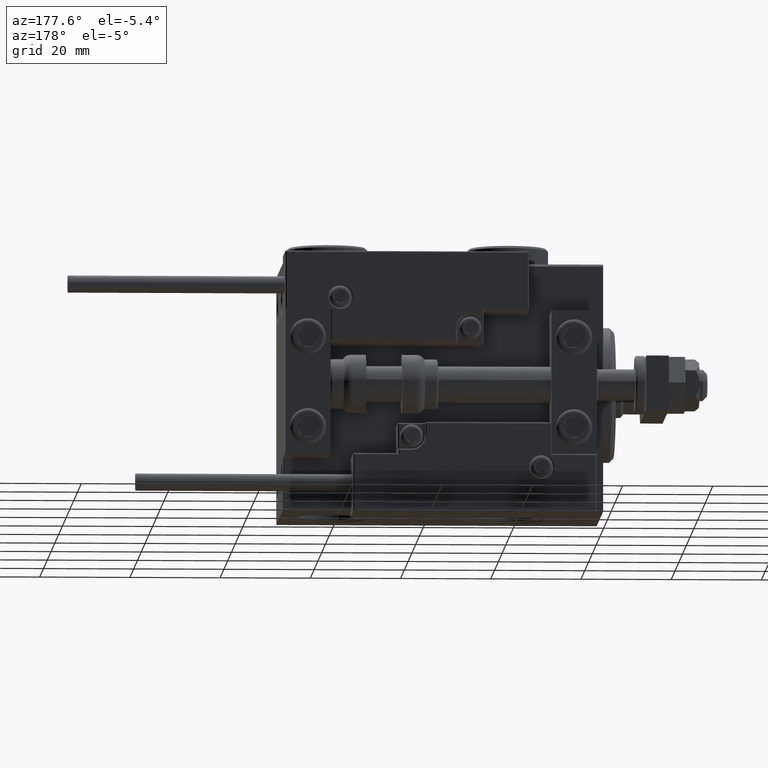
[diagram: clean part render]
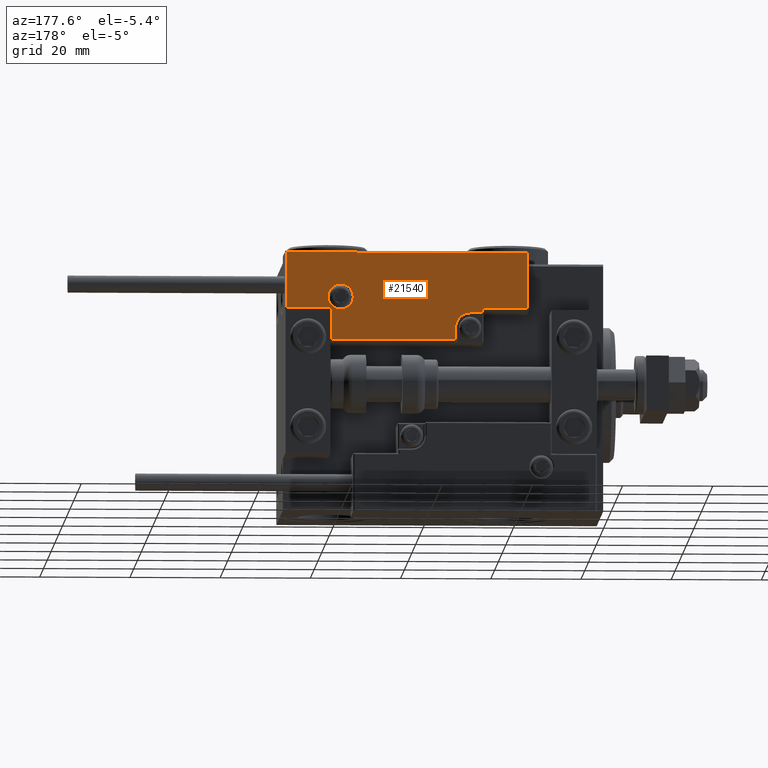
[diagram: same view with one face highlighted and labeled with its STEP entity id]
A machine part, auxiliary view. The second image highlights one B-rep face of the part: STEP entity #21540.
In plain terms, the highlighted planar face has unit normal (-0, 1, -0).
Its self-contained STEP definition (entity closure, byte-faithful):
#158 = EDGE_CURVE ( 'NONE', #42826, #48264, #22163, .T. ) ;
#702 = VERTEX_POINT ( 'NONE', #10676 ) ;
#1149 = VERTEX_POINT ( 'NONE', #47648 ) ;
#2489 = DIRECTION ( 'NONE',  ( 1.000000000000000000, 0.000000000000000000, 0.000000000000000000 ) ) ;
#2724 = ORIENTED_EDGE ( 'NONE', *, *, #34812, .T. ) ;
#2977 = EDGE_LOOP ( 'NONE', ( #14272, #28972 ) ) ;
#3202 = CARTESIAN_POINT ( 'NONE',  ( 26.70000000000006324, 19.70000000000001705, 14.00000000000000000 ) ) ;
#3329 = CARTESIAN_POINT ( 'NONE',  ( 11.00000000000000000, 0.3000000000000032085, 14.00000000000000000 ) ) ;
#5462 = EDGE_CURVE ( 'NONE', #29438, #38679, #45477, .T. ) ;
#5660 = ORIENTED_EDGE ( 'NONE', *, *, #19518, .T. ) ;
#6651 = DIRECTION ( 'NONE',  ( -8.006416042969869188E-16, -1.000000000000000000, 0.000000000000000000 ) ) ;
#7653 = EDGE_CURVE ( 'NONE', #24305, #1149, #39605, .T. ) ;
#8790 = CARTESIAN_POINT ( 'NONE',  ( 26.70000000000006324, 7.300000000000007816, 14.00000000000000000 ) ) ;
#9200 = CARTESIAN_POINT ( 'NONE',  ( 0.000000000000000000, 0.000000000000000000, 14.00000000000000000 ) ) ;
#9366 = CARTESIAN_POINT ( 'NONE',  ( 26.70000000000006324, 20.00000000000001776, 14.00000000000000000 ) ) ;
#9387 = EDGE_CURVE ( 'NONE', #49763, #702, #38757, .T. ) ;
#9468 = FACE_OUTER_BOUND ( 'NONE', #51506, .T. ) ;
#10676 = CARTESIAN_POINT ( 'NONE',  ( -17.59999999999994813, 9.800000000000004263, 14.00000000000000000 ) ) ;
#11190 = EDGE_CURVE ( 'NONE', #1149, #40916, #52427, .T. ) ;
#11339 = EDGE_CURVE ( 'NONE', #702, #49763, #31218, .T. ) ;
#11404 = DIRECTION ( 'NONE',  ( 0.000000000000000000, -0.000000000000000000, -1.000000000000000000 ) ) ;
#11500 = DIRECTION ( 'NONE',  ( 1.000000000000000000, -1.734723475976796001E-16, 0.000000000000000000 ) ) ;
#11874 = VECTOR ( 'NONE', #11500, 1000.000000000000000 ) ;
#12745 = CIRCLE ( 'NONE', #16942, 3.299999999999997158 ) ;
#13556 = VERTEX_POINT ( 'NONE', #20976 ) ;
#13579 = DIRECTION ( 'NONE',  ( -0.000000000000000000, 1.000000000000000000, -0.000000000000000000 ) ) ;
#14098 = LINE ( 'NONE', #39072, #29689 ) ;
#14272 = ORIENTED_EDGE ( 'NONE', *, *, #9387, .T. ) ;
#14702 = CARTESIAN_POINT ( 'NONE',  ( -16.69999999999999218, 7.300000000000003375, 14.00000000000000000 ) ) ;
#15197 = DIRECTION ( 'NONE',  ( 1.000000000000000000, -1.734723475976815230E-16, 0.000000000000000000 ) ) ;
#15246 = CARTESIAN_POINT ( 'NONE',  ( 10.69999999999999929, 0.3000000000000032085, 14.00000000000000000 ) ) ;
#15497 = ORIENTED_EDGE ( 'NONE', *, *, #7653, .T. ) ;
#16942 = AXIS2_PLACEMENT_3D ( 'NONE', #19369, #11404, #52021 ) ;
#17299 = LINE ( 'NONE', #33500, #42899 ) ;
#17626 = VECTOR ( 'NONE', #20036, 1000.000000000000000 ) ;
#18155 = DIRECTION ( 'NONE',  ( 0.000000000000000000, -0.000000000000000000, -1.000000000000000000 ) ) ;
#18186 = DIRECTION ( 'NONE',  ( 1.000000000000000000, 0.000000000000000000, 0.000000000000000000 ) ) ;
#19183 = VECTOR ( 'NONE', #31900, 1000.000000000000000 ) ;
#19261 = EDGE_CURVE ( 'NONE', #38679, #34989, #14098, .T. ) ;
#19369 = CARTESIAN_POINT ( 'NONE',  ( 13.99999999999999822, 3.000000000000002665, 14.00000000000000000 ) ) ;
#19518 = EDGE_CURVE ( 'NONE', #13556, #36776, #12745, .T. ) ;
#19628 = EDGE_CURVE ( 'NONE', #36776, #42826, #19890, .T. ) ;
#19890 = LINE ( 'NONE', #36096, #35641 ) ;
#19946 = CARTESIAN_POINT ( 'NONE',  ( -26.69999999999994600, 7.300000000000005151, 14.00000000000000000 ) ) ;
#20036 = DIRECTION ( 'NONE',  ( 1.000000000000000000, -0.000000000000000000, 0.000000000000000000 ) ) ;
#20153 = DIRECTION ( 'NONE',  ( 1.000000000000000000, 5.782411586589357639E-16, -0.000000000000000000 ) ) ;
#20976 = CARTESIAN_POINT ( 'NONE',  ( 10.69999999999999929, 3.000000000000003109, 14.00000000000000000 ) ) ;
#21314 = CARTESIAN_POINT ( 'NONE',  ( -26.99999999999993605, 19.70000000000002061, 14.00000000000000000 ) ) ;
#21540 = ADVANCED_FACE ( 'NONE', ( #45577, #9468 ), #50334, .T. ) ;
#22163 = LINE ( 'NONE', #34121, #41472 ) ;
#24305 = VERTEX_POINT ( 'NONE', #14702 ) ;
#25114 = VERTEX_POINT ( 'NONE', #8790 ) ;
#26304 = ORIENTED_EDGE ( 'NONE', *, *, #19261, .T. ) ;
#26938 = VECTOR ( 'NONE', #15197, 1000.000000000000000 ) ;
#27365 = CARTESIAN_POINT ( 'NONE',  ( 16.69999999999999929, 6.300000000000003375, 14.00000000000000000 ) ) ;
#27433 = CARTESIAN_POINT ( 'NONE',  ( -11.99999999999994849, 9.800000000000004263, 14.00000000000000000 ) ) ;
#27447 = CARTESIAN_POINT ( 'NONE',  ( 27.00000000000006395, 7.300000000000007816, 14.00000000000000000 ) ) ;
#27500 = ORIENTED_EDGE ( 'NONE', *, *, #11190, .T. ) ;
#28336 = EDGE_CURVE ( 'NONE', #40916, #13556, #17299, .T. ) ;
#28972 = ORIENTED_EDGE ( 'NONE', *, *, #11339, .T. ) ;
#29438 = VERTEX_POINT ( 'NONE', #3202 ) ;
#29590 = ORIENTED_EDGE ( 'NONE', *, *, #36974, .T. ) ;
#29689 = VECTOR ( 'NONE', #6651, 1000.000000000000000 ) ;
#29895 = CARTESIAN_POINT ( 'NONE',  ( -14.79999999999994920, 9.800000000000004263, 14.00000000000000000 ) ) ;
#31142 = LINE ( 'NONE', #47313, #26938 ) ;
#31218 = CIRCLE ( 'NONE', #34580, 2.800000000000000266 ) ;
#31900 = DIRECTION ( 'NONE',  ( 0.000000000000000000, -1.000000000000000000, 0.000000000000000000 ) ) ;
#32416 = CARTESIAN_POINT ( 'NONE',  ( 16.69999999999999929, 7.300000000000009592, 14.00000000000000000 ) ) ;
#33500 = CARTESIAN_POINT ( 'NONE',  ( 10.69999999999999929, 3.000000000000003109, 14.00000000000000000 ) ) ;
#33517 = VECTOR ( 'NONE', #40255, 1000.000000000000000 ) ;
#33849 = ORIENTED_EDGE ( 'NONE', *, *, #44709, .T. ) ;
#34121 = CARTESIAN_POINT ( 'NONE',  ( 16.69999999999999929, 7.000000000000009770, 14.00000000000000000 ) ) ;
#34405 = CARTESIAN_POINT ( 'NONE',  ( 13.99999999999999822, 6.300000000000001599, 14.00000000000000000 ) ) ;
#34580 = AXIS2_PLACEMENT_3D ( 'NONE', #38614, #18155, #2489 ) ;
#34812 = EDGE_CURVE ( 'NONE', #34989, #24305, #31142, .T. ) ;
#34989 = VERTEX_POINT ( 'NONE', #19946 ) ;
#35641 = VECTOR ( 'NONE', #20153, 1000.000000000000000 ) ;
#36096 = CARTESIAN_POINT ( 'NONE',  ( 17.00000000000000000, 6.300000000000003375, 14.00000000000000000 ) ) ;
#36776 = VERTEX_POINT ( 'NONE', #34405 ) ;
#36974 = EDGE_CURVE ( 'NONE', #25114, #29438, #46251, .T. ) ;
#38614 = CARTESIAN_POINT ( 'NONE',  ( -14.79999999999994920, 9.800000000000004263, 14.00000000000000000 ) ) ;
#38679 = VERTEX_POINT ( 'NONE', #41983 ) ;
#38757 = CIRCLE ( 'NONE', #51481, 2.800000000000000266 ) ;
#39072 = CARTESIAN_POINT ( 'NONE',  ( -26.69999999999994600, 7.000000000000005329, 14.00000000000000000 ) ) ;
#39605 = LINE ( 'NONE', #51812, #19183 ) ;
#40255 = DIRECTION ( 'NONE',  ( -1.000000000000000000, 6.424901762877063495E-17, -0.000000000000000000 ) ) ;
#40691 = ORIENTED_EDGE ( 'NONE', *, *, #19628, .T. ) ;
#40916 = VERTEX_POINT ( 'NONE', #15246 ) ;
#41472 = VECTOR ( 'NONE', #42348, 1000.000000000000000 ) ;
#41983 = CARTESIAN_POINT ( 'NONE',  ( -26.69999999999993534, 19.70000000000002061, 14.00000000000000000 ) ) ;
#42119 = DIRECTION ( 'NONE',  ( -0.000000000000000000, 0.000000000000000000, 1.000000000000000000 ) ) ;
#42348 = DIRECTION ( 'NONE',  ( 9.912705577010318647E-16, 1.000000000000000000, 0.000000000000000000 ) ) ;
#42809 = ORIENTED_EDGE ( 'NONE', *, *, #28336, .T. ) ;
#42826 = VERTEX_POINT ( 'NONE', #27365 ) ;
#42899 = VECTOR ( 'NONE', #13579, 1000.000000000000000 ) ;
#44709 = EDGE_CURVE ( 'NONE', #48264, #25114, #48393, .T. ) ;
#44854 = ORIENTED_EDGE ( 'NONE', *, *, #5462, .T. ) ;
#45477 = LINE ( 'NONE', #21314, #33517 ) ;
#45577 = FACE_BOUND ( 'NONE', #2977, .T. ) ;
#46073 = DIRECTION ( 'NONE',  ( 0.000000000000000000, -0.000000000000000000, -1.000000000000000000 ) ) ;
#46251 = LINE ( 'NONE', #9366, #49052 ) ;
#47313 = CARTESIAN_POINT ( 'NONE',  ( -16.99999999999999289, 7.300000000000003375, 14.00000000000000000 ) ) ;
#47648 = CARTESIAN_POINT ( 'NONE',  ( -16.69999999999999218, 0.3000000000000032085, 14.00000000000000000 ) ) ;
#48264 = VERTEX_POINT ( 'NONE', #32416 ) ;
#48393 = LINE ( 'NONE', #27447, #11874 ) ;
#49052 = VECTOR ( 'NONE', #50763, 1000.000000000000000 ) ;
#49257 = AXIS2_PLACEMENT_3D ( 'NONE', #9200, #42119, #49553 ) ;
#49553 = DIRECTION ( 'NONE',  ( 1.000000000000000000, 0.000000000000000000, 0.000000000000000000 ) ) ;
#49763 = VERTEX_POINT ( 'NONE', #27433 ) ;
#50334 = PLANE ( 'NONE',  #49257 ) ;
#50763 = DIRECTION ( 'NONE',  ( 0.000000000000000000, 1.000000000000000000, -0.000000000000000000 ) ) ;
#51054 = ORIENTED_EDGE ( 'NONE', *, *, #158, .T. ) ;
#51481 = AXIS2_PLACEMENT_3D ( 'NONE', #29895, #46073, #18186 ) ;
#51506 = EDGE_LOOP ( 'NONE', ( #15497, #27500, #42809, #5660, #40691, #51054, #33849, #29590, #44854, #26304, #2724 ) ) ;
#51812 = CARTESIAN_POINT ( 'NONE',  ( -16.69999999999999218, 3.252606517456513302E-15, 14.00000000000000000 ) ) ;
#52021 = DIRECTION ( 'NONE',  ( 1.000000000000000000, 0.000000000000000000, 0.000000000000000000 ) ) ;
#52427 = LINE ( 'NONE', #3329, #17626 ) ;